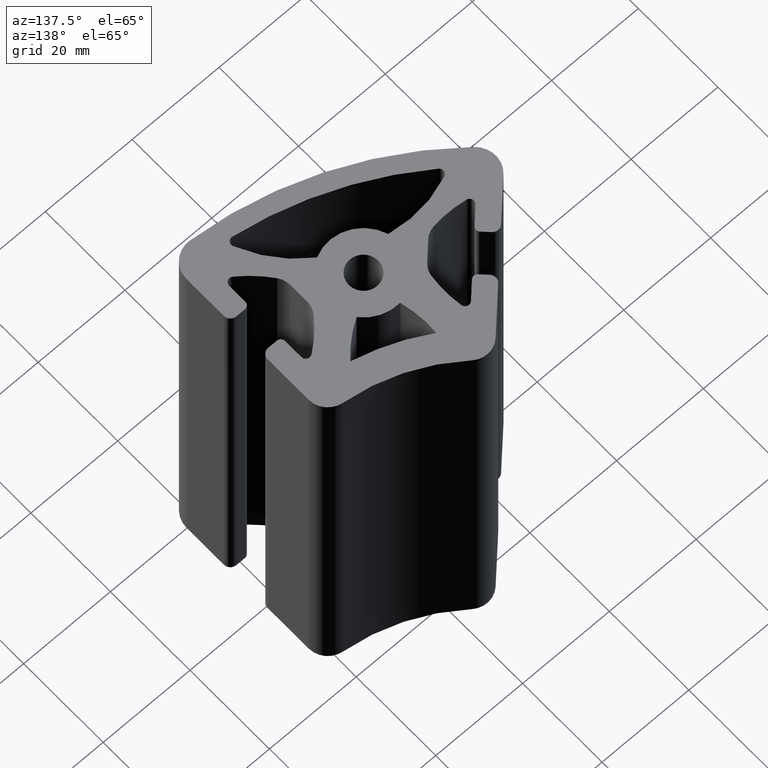
[diagram: clean part render]
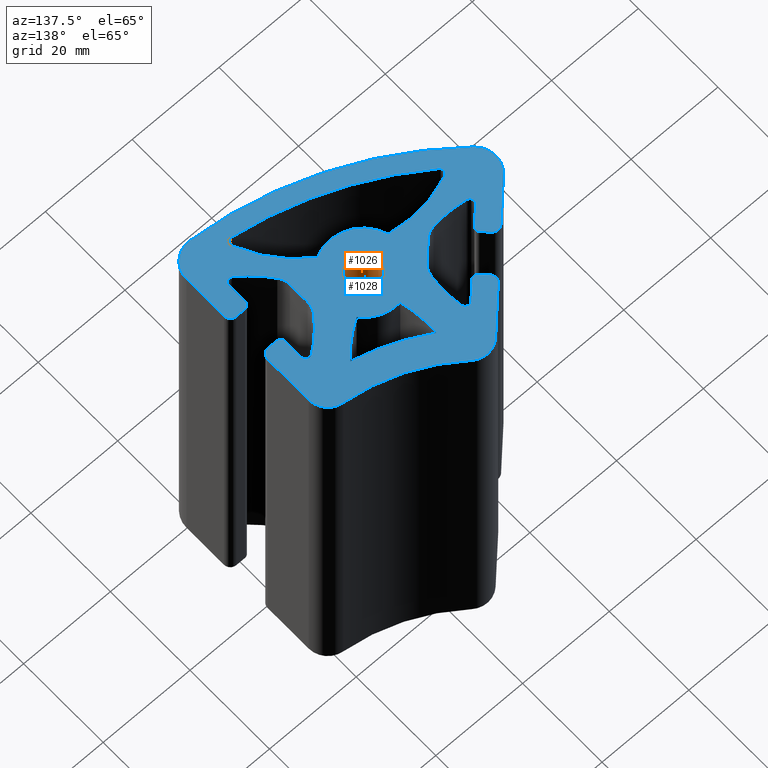
[diagram: same view with the hole feature highlighted: cylindrical wall and planar end face, labeled with their STEP entity ids]
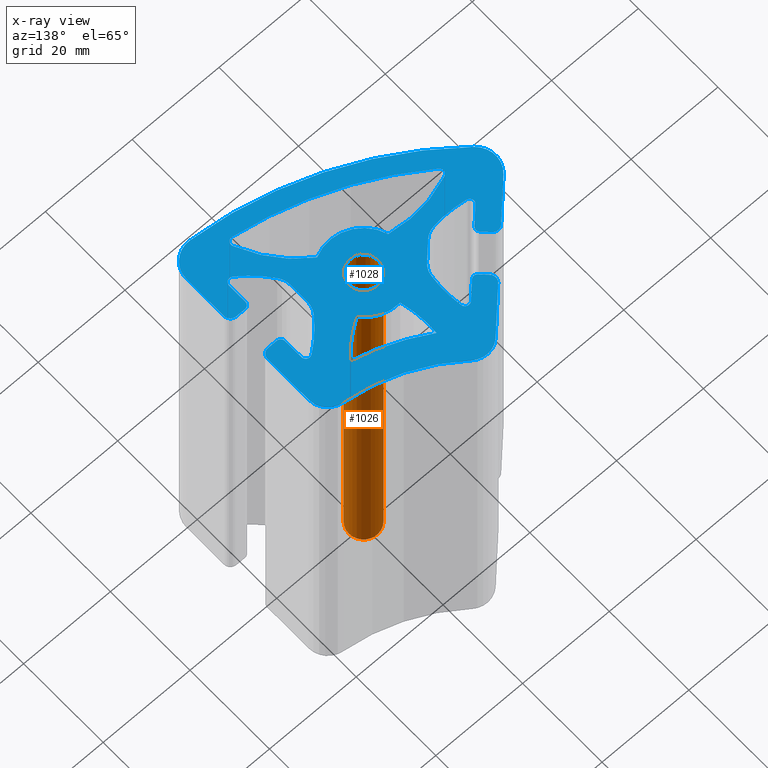
[diagram: x-ray of the same camera — body ghosted, the hole faces saturated]
A machine part, auxiliary view. The highlighted faces form one hole feature of diameter 6.8 mm: the cylindrical wall (entity #1026, orange) and its adjacent planar end face (entity #1028, blue) — they share a circular edge in the B-rep.
The next image is the same camera in x-ray (body ghosted, the hole faces saturated) — the bore reads through the body.
Wall:
#15=FACE_BOUND('',#142,.T.);
#88=FACE_OUTER_BOUND('',#141,.T.);
#141=EDGE_LOOP('',(#835));
#142=EDGE_LOOP('',(#836));
#379=CIRCLE('',#1154,3.3999999999992);
#380=CIRCLE('',#1155,3.3999999999992);
#481=VERTEX_POINT('',#1794);
#482=VERTEX_POINT('',#1796);
#633=EDGE_CURVE('',#481,#481,#379,.T.);
#634=EDGE_CURVE('',#482,#482,#380,.T.);
#835=ORIENTED_EDGE('',*,*,#633,.F.);
#836=ORIENTED_EDGE('',*,*,#634,.T.);
#975=CYLINDRICAL_SURFACE('',#1153,3.3999999999992);
#1026=ADVANCED_FACE('',(#88,#15),#975,.F.);
#1153=AXIS2_PLACEMENT_3D('',#1793,#1482,#1483);
#1154=AXIS2_PLACEMENT_3D('',#1795,#1484,#1485);
#1155=AXIS2_PLACEMENT_3D('',#1797,#1486,#1487);
#1482=DIRECTION('center_axis',(0.,0.,-1.));
#1483=DIRECTION('ref_axis',(1.,0.,0.));
#1484=DIRECTION('center_axis',(0.,0.,-1.));
#1485=DIRECTION('ref_axis',(1.,0.,0.));
#1486=DIRECTION('center_axis',(0.,0.,-1.));
#1487=DIRECTION('ref_axis',(1.,0.,0.));
#1793=CARTESIAN_POINT('Origin',(0.,0.,0.));
#1794=CARTESIAN_POINT('',(-3.3999999999992,0.,100.));
#1795=CARTESIAN_POINT('Origin',(0.,0.,100.));
#1796=CARTESIAN_POINT('',(-3.3999999999992,0.,0.));
#1797=CARTESIAN_POINT('Origin',(0.,0.,0.));
End face:
#19=FACE_BOUND('',#148,.T.);
#20=FACE_BOUND('',#149,.T.);
#21=FACE_BOUND('',#150,.T.);
#37=PLANE('',#1157);
#90=FACE_OUTER_BOUND('',#147,.T.);
#147=EDGE_LOOP('',(#888,#889,#890,#891,#892,#893,#894,#895,#896,#897,#898,
#899,#900,#901,#902,#903,#904,#905,#906,#907,#908,#909,#910,#911,#912,#913,
#914,#915,#916,#917,#918,#919,#920,#921,#922,#923,#924,#925,#926,#927));
#148=EDGE_LOOP('',(#928,#929,#930,#931));
#149=EDGE_LOOP('',(#932,#933,#934,#935,#936,#937));
#150=EDGE_LOOP('',(#938));
#156=LINE('',#1513,#234);
#160=LINE('',#1525,#238);
#164=LINE('',#1537,#242);
#170=LINE('',#1561,#248);
#176=LINE('',#1585,#254);
#180=LINE('',#1597,#258);
#184=LINE('',#1609,#262);
#190=LINE('',#1633,#268);
#194=LINE('',#1645,#272);
#198=LINE('',#1657,#276);
#204=LINE('',#1681,#282);
#210=LINE('',#1705,#288);
#214=LINE('',#1717,#292);
#218=LINE('',#1729,#296);
#234=VECTOR('',#1179,10.3185559378409);
#238=VECTOR('',#1191,1.99999999961383);
#242=VECTOR('',#1203,4.0813799715757);
#248=VECTOR('',#1229,4.38611258266495);
#254=VECTOR('',#1255,4.08137997157545);
#258=VECTOR('',#1267,2.00000000003804);
#262=VECTOR('',#1279,9.39346180235945);
#268=VECTOR('',#1305,9.39346185220002);
#272=VECTOR('',#1317,2.00000075430013);
#276=VECTOR('',#1329,4.08137997149999);
#282=VECTOR('',#1355,4.38611258250001);
#288=VECTOR('',#1381,4.08137997150005);
#292=VECTOR('',#1393,2.00000000000001);
#296=VECTOR('',#1405,10.3185556507001);
#308=CIRCLE('',#1033,40.0000000000008);
#310=CIRCLE('',#1036,4.39999999274337);
#312=CIRCLE('',#1040,1.5000000000009);
#314=CIRCLE('',#1044,1.00000000000065);
#316=CIRCLE('',#1048,1.00000000000039);
#318=CIRCLE('',#1051,24.9999999999984);
#320=CIRCLE('',#1054,3.99999999887074);
#322=CIRCLE('',#1058,3.99999999756813);
#324=CIRCLE('',#1061,24.9999999998268);
#326=CIRCLE('',#1064,0.999999999910538);
#328=CIRCLE('',#1068,1.00000000000049);
#330=CIRCLE('',#1072,1.5000000000001);
#332=CIRCLE('',#1076,4.94355862037018);
#334=CIRCLE('',#1079,79.9999999999343);
#336=CIRCLE('',#1082,4.9435586203638);
#338=CIRCLE('',#1086,1.50000000000251);
#340=CIRCLE('',#1090,0.999999999999775);
#342=CIRCLE('',#1094,0.999999999998558);
#344=CIRCLE('',#1097,24.9999999999962);
#346=CIRCLE('',#1100,3.99999999774014);
#348=CIRCLE('',#1104,3.99999999877938);
#350=CIRCLE('',#1107,24.9999999999128);
#352=CIRCLE('',#1110,0.999999999955665);
#354=CIRCLE('',#1114,1.);
#356=CIRCLE('',#1118,1.5);
#358=CIRCLE('',#1122,4.39999999274737);
#360=CIRCLE('',#1125,45.8199330349291);
#362=CIRCLE('',#1128,24.9999999999837);
#364=CIRCLE('',#1131,8.40000000000022);
#366=CIRCLE('',#1134,25.0000000000011);
#368=CIRCLE('',#1137,1.00000000000546);
#370=CIRCLE('',#1140,76.2854262839588);
#372=CIRCLE('',#1143,1.0000000000059);
#374=CIRCLE('',#1146,25.0000000000032);
#376=CIRCLE('',#1149,8.40000000000033);
#378=CIRCLE('',#1152,24.9999999999996);
#379=CIRCLE('',#1154,3.3999999999992);
#383=VERTEX_POINT('',#1497);
#384=VERTEX_POINT('',#1499);
#386=VERTEX_POINT('',#1505);
#388=VERTEX_POINT('',#1511);
#390=VERTEX_POINT('',#1517);
#392=VERTEX_POINT('',#1523);
#394=VERTEX_POINT('',#1529);
#396=VERTEX_POINT('',#1535);
#398=VERTEX_POINT('',#1541);
#400=VERTEX_POINT('',#1547);
#402=VERTEX_POINT('',#1553);
#404=VERTEX_POINT('',#1559);
#406=VERTEX_POINT('',#1565);
#408=VERTEX_POINT('',#1571);
#410=VERTEX_POINT('',#1577);
#412=VERTEX_POINT('',#1583);
#414=VERTEX_POINT('',#1589);
#416=VERTEX_POINT('',#1595);
#418=VERTEX_POINT('',#1601);
#420=VERTEX_POINT('',#1607);
#422=VERTEX_POINT('',#1613);
#424=VERTEX_POINT('',#1619);
#426=VERTEX_POINT('',#1625);
#428=VERTEX_POINT('',#1631);
#430=VERTEX_POINT('',#1637);
#432=VERTEX_POINT('',#1643);
#434=VERTEX_POINT('',#1649);
#436=VERTEX_POINT('',#1655);
#438=VERTEX_POINT('',#1661);
#440=VERTEX_POINT('',#1667);
#442=VERTEX_POINT('',#1673);
#444=VERTEX_POINT('',#1679);
#446=VERTEX_POINT('',#1685);
#448=VERTEX_POINT('',#1691);
#450=VERTEX_POINT('',#1697);
#452=VERTEX_POINT('',#1703);
#454=VERTEX_POINT('',#1709);
#456=VERTEX_POINT('',#1715);
#458=VERTEX_POINT('',#1721);
#460=VERTEX_POINT('',#1727);
#463=VERTEX_POINT('',#1737);
#464=VERTEX_POINT('',#1739);
#466=VERTEX_POINT('',#1745);
#468=VERTEX_POINT('',#1751);
#471=VERTEX_POINT('',#1761);
#472=VERTEX_POINT('',#1763);
#474=VERTEX_POINT('',#1769);
#476=VERTEX_POINT('',#1775);
#478=VERTEX_POINT('',#1781);
#480=VERTEX_POINT('',#1787);
#481=VERTEX_POINT('',#1794);
#485=EDGE_CURVE('',#384,#383,#308,.T.);
#489=EDGE_CURVE('',#383,#386,#310,.T.);
#492=EDGE_CURVE('',#386,#388,#156,.T.);
#495=EDGE_CURVE('',#388,#390,#312,.T.);
#498=EDGE_CURVE('',#390,#392,#160,.T.);
#501=EDGE_CURVE('',#392,#394,#314,.T.);
#504=EDGE_CURVE('',#394,#396,#164,.T.);
#507=EDGE_CURVE('',#396,#398,#316,.T.);
#510=EDGE_CURVE('',#398,#400,#318,.T.);
#513=EDGE_CURVE('',#400,#402,#320,.T.);
#516=EDGE_CURVE('',#402,#404,#170,.T.);
#519=EDGE_CURVE('',#404,#406,#322,.T.);
#522=EDGE_CURVE('',#406,#408,#324,.T.);
#525=EDGE_CURVE('',#408,#410,#326,.T.);
#528=EDGE_CURVE('',#410,#412,#176,.T.);
#531=EDGE_CURVE('',#412,#414,#328,.T.);
#534=EDGE_CURVE('',#414,#416,#180,.T.);
#537=EDGE_CURVE('',#416,#418,#330,.T.);
#540=EDGE_CURVE('',#418,#420,#184,.T.);
#543=EDGE_CURVE('',#420,#422,#332,.T.);
#546=EDGE_CURVE('',#422,#424,#334,.T.);
#549=EDGE_CURVE('',#424,#426,#336,.T.);
#552=EDGE_CURVE('',#426,#428,#190,.T.);
#555=EDGE_CURVE('',#428,#430,#338,.T.);
#558=EDGE_CURVE('',#430,#432,#194,.T.);
#561=EDGE_CURVE('',#432,#434,#340,.T.);
#564=EDGE_CURVE('',#434,#436,#198,.T.);
#567=EDGE_CURVE('',#436,#438,#342,.T.);
#570=EDGE_CURVE('',#438,#440,#344,.T.);
#573=EDGE_CURVE('',#440,#442,#346,.T.);
#576=EDGE_CURVE('',#442,#444,#204,.T.);
#579=EDGE_CURVE('',#444,#446,#348,.T.);
#582=EDGE_CURVE('',#446,#448,#350,.T.);
#585=EDGE_CURVE('',#448,#450,#352,.T.);
#588=EDGE_CURVE('',#450,#452,#210,.T.);
#591=EDGE_CURVE('',#452,#454,#354,.T.);
#594=EDGE_CURVE('',#454,#456,#214,.T.);
#597=EDGE_CURVE('',#456,#458,#356,.T.);
#600=EDGE_CURVE('',#458,#460,#218,.T.);
#602=EDGE_CURVE('',#460,#384,#358,.T.);
#605=EDGE_CURVE('',#464,#463,#360,.T.);
#609=EDGE_CURVE('',#463,#466,#362,.T.);
#612=EDGE_CURVE('',#466,#468,#364,.T.);
#614=EDGE_CURVE('',#468,#464,#366,.T.);
#617=EDGE_CURVE('',#472,#471,#368,.T.);
#621=EDGE_CURVE('',#471,#474,#370,.T.);
#624=EDGE_CURVE('',#474,#476,#372,.T.);
#627=EDGE_CURVE('',#476,#478,#374,.T.);
#630=EDGE_CURVE('',#478,#480,#376,.T.);
#632=EDGE_CURVE('',#480,#472,#378,.T.);
#633=EDGE_CURVE('',#481,#481,#379,.T.);
#888=ORIENTED_EDGE('',*,*,#485,.T.);
#889=ORIENTED_EDGE('',*,*,#489,.T.);
#890=ORIENTED_EDGE('',*,*,#492,.T.);
#891=ORIENTED_EDGE('',*,*,#495,.T.);
#892=ORIENTED_EDGE('',*,*,#498,.T.);
#893=ORIENTED_EDGE('',*,*,#501,.T.);
#894=ORIENTED_EDGE('',*,*,#504,.T.);
#895=ORIENTED_EDGE('',*,*,#507,.T.);
#896=ORIENTED_EDGE('',*,*,#510,.T.);
#897=ORIENTED_EDGE('',*,*,#513,.T.);
#898=ORIENTED_EDGE('',*,*,#516,.T.);
#899=ORIENTED_EDGE('',*,*,#519,.T.);
#900=ORIENTED_EDGE('',*,*,#522,.T.);
#901=ORIENTED_EDGE('',*,*,#525,.T.);
#902=ORIENTED_EDGE('',*,*,#528,.T.);
#903=ORIENTED_EDGE('',*,*,#531,.T.);
#904=ORIENTED_EDGE('',*,*,#534,.T.);
#905=ORIENTED_EDGE('',*,*,#537,.T.);
#906=ORIENTED_EDGE('',*,*,#540,.T.);
#907=ORIENTED_EDGE('',*,*,#543,.T.);
#908=ORIENTED_EDGE('',*,*,#546,.T.);
#909=ORIENTED_EDGE('',*,*,#549,.T.);
#910=ORIENTED_EDGE('',*,*,#552,.T.);
#911=ORIENTED_EDGE('',*,*,#555,.T.);
#912=ORIENTED_EDGE('',*,*,#558,.T.);
#913=ORIENTED_EDGE('',*,*,#561,.T.);
#914=ORIENTED_EDGE('',*,*,#564,.T.);
#915=ORIENTED_EDGE('',*,*,#567,.T.);
#916=ORIENTED_EDGE('',*,*,#570,.T.);
#917=ORIENTED_EDGE('',*,*,#573,.T.);
#918=ORIENTED_EDGE('',*,*,#576,.T.);
#919=ORIENTED_EDGE('',*,*,#579,.T.);
#920=ORIENTED_EDGE('',*,*,#582,.T.);
#921=ORIENTED_EDGE('',*,*,#585,.T.);
#922=ORIENTED_EDGE('',*,*,#588,.T.);
#923=ORIENTED_EDGE('',*,*,#591,.T.);
#924=ORIENTED_EDGE('',*,*,#594,.T.);
#925=ORIENTED_EDGE('',*,*,#597,.T.);
#926=ORIENTED_EDGE('',*,*,#600,.T.);
#927=ORIENTED_EDGE('',*,*,#602,.T.);
#928=ORIENTED_EDGE('',*,*,#605,.T.);
#929=ORIENTED_EDGE('',*,*,#609,.T.);
#930=ORIENTED_EDGE('',*,*,#612,.T.);
#931=ORIENTED_EDGE('',*,*,#614,.T.);
#932=ORIENTED_EDGE('',*,*,#617,.T.);
#933=ORIENTED_EDGE('',*,*,#621,.T.);
#934=ORIENTED_EDGE('',*,*,#624,.T.);
#935=ORIENTED_EDGE('',*,*,#627,.T.);
#936=ORIENTED_EDGE('',*,*,#630,.T.);
#937=ORIENTED_EDGE('',*,*,#632,.T.);
#938=ORIENTED_EDGE('',*,*,#633,.T.);
#1028=ADVANCED_FACE('',(#90,#19,#20,#21),#37,.T.);
#1033=AXIS2_PLACEMENT_3D('',#1500,#1165,#1166);
#1036=AXIS2_PLACEMENT_3D('',#1507,#1173,#1174);
#1040=AXIS2_PLACEMENT_3D('',#1519,#1185,#1186);
#1044=AXIS2_PLACEMENT_3D('',#1531,#1197,#1198);
#1048=AXIS2_PLACEMENT_3D('',#1543,#1209,#1210);
#1051=AXIS2_PLACEMENT_3D('',#1549,#1216,#1217);
#1054=AXIS2_PLACEMENT_3D('',#1555,#1223,#1224);
#1058=AXIS2_PLACEMENT_3D('',#1567,#1235,#1236);
#1061=AXIS2_PLACEMENT_3D('',#1573,#1242,#1243);
#1064=AXIS2_PLACEMENT_3D('',#1579,#1249,#1250);
#1068=AXIS2_PLACEMENT_3D('',#1591,#1261,#1262);
#1072=AXIS2_PLACEMENT_3D('',#1603,#1273,#1274);
#1076=AXIS2_PLACEMENT_3D('',#1615,#1285,#1286);
#1079=AXIS2_PLACEMENT_3D('',#1621,#1292,#1293);
#1082=AXIS2_PLACEMENT_3D('',#1627,#1299,#1300);
#1086=AXIS2_PLACEMENT_3D('',#1639,#1311,#1312);
#1090=AXIS2_PLACEMENT_3D('',#1651,#1323,#1324);
#1094=AXIS2_PLACEMENT_3D('',#1663,#1335,#1336);
#1097=AXIS2_PLACEMENT_3D('',#1669,#1342,#1343);
#1100=AXIS2_PLACEMENT_3D('',#1675,#1349,#1350);
#1104=AXIS2_PLACEMENT_3D('',#1687,#1361,#1362);
#1107=AXIS2_PLACEMENT_3D('',#1693,#1368,#1369);
#1110=AXIS2_PLACEMENT_3D('',#1699,#1375,#1376);
#1114=AXIS2_PLACEMENT_3D('',#1711,#1387,#1388);
#1118=AXIS2_PLACEMENT_3D('',#1723,#1399,#1400);
#1122=AXIS2_PLACEMENT_3D('',#1732,#1410,#1411);
#1125=AXIS2_PLACEMENT_3D('',#1740,#1417,#1418);
#1128=AXIS2_PLACEMENT_3D('',#1747,#1425,#1426);
#1131=AXIS2_PLACEMENT_3D('',#1753,#1432,#1433);
#1134=AXIS2_PLACEMENT_3D('',#1756,#1438,#1439);
#1137=AXIS2_PLACEMENT_3D('',#1764,#1445,#1446);
#1140=AXIS2_PLACEMENT_3D('',#1771,#1453,#1454);
#1143=AXIS2_PLACEMENT_3D('',#1777,#1460,#1461);
#1146=AXIS2_PLACEMENT_3D('',#1783,#1467,#1468);
#1149=AXIS2_PLACEMENT_3D('',#1789,#1474,#1475);
#1152=AXIS2_PLACEMENT_3D('',#1792,#1480,#1481);
#1154=AXIS2_PLACEMENT_3D('',#1795,#1484,#1485);
#1157=AXIS2_PLACEMENT_3D('',#1799,#1490,#1491);
#1165=DIRECTION('center_axis',(0.,0.,-1.));
#1166=DIRECTION('ref_axis',(-0.63355250861249,-0.773699695509066,0.));
#1173=DIRECTION('center_axis',(0.,0.,1.));
#1174=DIRECTION('ref_axis',(0.6335525086179,0.773699695504636,0.));
#1179=DIRECTION('',(-0.707106832870135,-0.707106729502956,0.));
#1185=DIRECTION('center_axis',(0.,0.,1.));
#1186=DIRECTION('ref_axis',(-0.707106729496021,0.707106832877071,0.));
#1191=DIRECTION('',(0.707106729486546,-0.707106832886545,0.));
#1197=DIRECTION('center_axis',(0.,0.,1.));
#1198=DIRECTION('ref_axis',(-0.707106832874608,-0.707106729498484,0.));
#1203=DIRECTION('',(0.707106832884756,0.707106729488335,0.));
#1209=DIRECTION('center_axis',(0.,0.,-1.));
#1210=DIRECTION('ref_axis',(0.987633140320515,0.156782588767495,0.));
#1216=DIRECTION('center_axis',(0.,0.,-1.));
#1217=DIRECTION('ref_axis',(0.989378958685399,-0.145359128060795,0.));
#1223=DIRECTION('center_axis',(0.,0.,-1.));
#1224=DIRECTION('ref_axis',(0.70710672948126,-0.707106832891831,0.));
#1229=DIRECTION('',(-0.707106832883816,-0.707106729489275,0.));
#1235=DIRECTION('center_axis',(0.,0.,-1.));
#1236=DIRECTION('ref_axis',(0.145358983155329,-0.989378979974837,0.));
#1242=DIRECTION('center_axis',(0.,0.,-1.));
#1243=DIRECTION('ref_axis',(-0.156782733162121,-0.987633117398467,0.));
#1249=DIRECTION('center_axis',(0.,0.,-1.));
#1250=DIRECTION('ref_axis',(-0.70710672949604,0.707106832877052,0.));
#1255=DIRECTION('',(0.70710683286023,0.707106729512861,0.));
#1261=DIRECTION('center_axis',(0.,0.,1.));
#1262=DIRECTION('ref_axis',(0.707106729496096,-0.707106832876995,0.));
#1267=DIRECTION('',(-0.707106729486518,0.707106832886574,0.));
#1273=DIRECTION('center_axis',(0.,0.,1.));
#1274=DIRECTION('ref_axis',(0.707106832719046,0.707106729654045,0.));
#1279=DIRECTION('',(-0.707106832876755,-0.707106729496336,0.));
#1285=DIRECTION('center_axis',(0.,0.,1.));
#1286=DIRECTION('ref_axis',(-0.707106729630642,0.707106832742449,0.));
#1292=DIRECTION('center_axis',(0.,0.,1.));
#1293=DIRECTION('ref_axis',(-0.65899813661131,-0.752144571171541,0.));
#1299=DIRECTION('center_axis',(0.,0.,1.));
#1300=DIRECTION('ref_axis',(-0.065864611351598,-0.997828568929304,0.));
#1305=DIRECTION('',(7.31040259690093E-8,0.999999999999997,0.));
#1311=DIRECTION('center_axis',(0.,0.,1.));
#1312=DIRECTION('ref_axis',(0.999999999999997,-7.3101357E-8,0.));
#1317=DIRECTION('',(-0.999999999999997,7.31000406511256E-8,0.));
#1323=DIRECTION('center_axis',(0.,0.,1.));
#1324=DIRECTION('ref_axis',(7.3097908E-8,0.999999999999997,0.));
#1329=DIRECTION('',(-7.30879534522933E-8,-0.999999999999997,0.));
#1335=DIRECTION('center_axis',(0.,0.,-1.));
#1336=DIRECTION('ref_axis',(-0.587500059154928,-0.809224122535257,0.));
#1342=DIRECTION('center_axis',(0.,0.,-1.));
#1343=DIRECTION('ref_axis',(-0.802380995919926,-0.596812145810177,0.));
#1349=DIRECTION('center_axis',(0.,0.,-1.));
#1350=DIRECTION('ref_axis',(-0.999999999999997,7.32305240000001E-8,0.));
#1355=DIRECTION('',(7.31399728791574E-8,0.999999999999997,0.));
#1361=DIRECTION('center_axis',(0.,0.,-1.));
#1362=DIRECTION('ref_axis',(-0.802380908675186,0.596812263105897,0.));
#1368=DIRECTION('center_axis',(0.,0.,-1.));
#1369=DIRECTION('ref_axis',(-0.587499940844968,0.809224208428764,0.));
#1375=DIRECTION('center_axis',(0.,0.,-1.));
#1376=DIRECTION('ref_axis',(0.999999999999997,-7.31013190000001E-8,0.));
#1381=DIRECTION('',(-7.31125218884188E-8,-0.999999999999997,0.));
#1387=DIRECTION('center_axis',(0.,0.,1.));
#1388=DIRECTION('ref_axis',(-0.999999999999997,7.3101319E-8,0.));
#1393=DIRECTION('',(0.999999999999997,-7.310001100963E-8,0.));
#1399=DIRECTION('center_axis',(0.,0.,1.));
#1400=DIRECTION('ref_axis',(-7.3104881E-8,-0.999999999999997,0.));
#1405=DIRECTION('',(1.46202632572398E-7,0.999999999999989,0.));
#1410=DIRECTION('center_axis',(0.,0.,1.));
#1411=DIRECTION('ref_axis',(0.999999999999989,-1.46202746E-7,0.));
#1417=DIRECTION('center_axis',(0.,0.,1.));
#1418=DIRECTION('ref_axis',(-0.534313376731466,-0.845286469456254,0.));
#1425=DIRECTION('center_axis',(0.,0.,-1.));
#1426=DIRECTION('ref_axis',(1.,0.,0.));
#1432=DIRECTION('center_axis',(0.,0.,1.));
#1433=DIRECTION('ref_axis',(0.771940579077785,0.635694692736265,0.));
#1438=DIRECTION('center_axis',(0.,0.,-1.));
#1439=DIRECTION('ref_axis',(-0.996551865702632,0.082972157767554,0.));
#1445=DIRECTION('center_axis',(0.,0.,-1.));
#1446=DIRECTION('ref_axis',(-7.3066531E-8,-0.999999999999997,0.));
#1453=DIRECTION('center_axis',(0.,0.,-1.));
#1454=DIRECTION('ref_axis',(-0.595569740235652,-0.803303606686562,0.));
#1460=DIRECTION('center_axis',(0.,0.,-1.));
#1461=DIRECTION('ref_axis',(1.,0.,0.));
#1467=DIRECTION('center_axis',(0.,0.,-1.));
#1468=DIRECTION('ref_axis',(0.18362855463492,0.982995703918735,0.));
#1474=DIRECTION('center_axis',(0.,0.,1.));
#1475=DIRECTION('ref_axis',(-0.95432230934647,-0.298779065336948,0.));
#1480=DIRECTION('center_axis',(0.,0.,-1.));
#1481=DIRECTION('ref_axis',(0.92355518849237,0.383465531448164,0.));
#1484=DIRECTION('center_axis',(0.,0.,-1.));
#1485=DIRECTION('ref_axis',(1.,0.,0.));
#1490=DIRECTION('center_axis',(0.,0.,1.));
#1491=DIRECTION('ref_axis',(1.,0.,0.));
#1497=CARTESIAN_POINT('',(-2.38109035043476,24.4847824518103,100.));
#1499=CARTESIAN_POINT('',(18.9970438058197,15.6296677290487,100.));
#1500=CARTESIAN_POINT('Origin',(22.9610099940653,55.4327702721734,100.));
#1505=CARTESIAN_POINT('',(-8.27999098840746,24.1917738567321,100.));
#1507=CARTESIAN_POINT('Origin',(-5.16872138375606,21.0805037972043,100.));
#1511=CARTESIAN_POINT('',(-15.5763123974075,16.8954535143321,100.));
#1513=CARTESIAN_POINT('',(-8.27999098840746,24.1917738567321,100.));
#1517=CARTESIAN_POINT('',(-15.5763125524772,14.7741331707693,100.));
#1519=CARTESIAN_POINT('Origin',(-14.5156523031628,15.8347932650158,100.));
#1523=CARTESIAN_POINT('',(-14.1620990937772,13.3599195052693,100.));
#1525=CARTESIAN_POINT('',(-15.5763125524772,14.7741331707693,100.));
#1529=CARTESIAN_POINT('',(-12.7478855314057,13.3599194018907,100.));
#1531=CARTESIAN_POINT('Origin',(-13.4549922609022,14.0670262347683,100.));
#1535=CARTESIAN_POINT('',(-9.86191386590554,16.2458906453908,100.));
#1537=CARTESIAN_POINT('',(-12.7478855314057,13.3599194018907,100.));
#1541=CARTESIAN_POINT('',(-8.1671739960882,15.6955664012811,100.));
#1543=CARTESIAN_POINT('Origin',(-9.15480713640909,15.5387838125135,100.));
#1547=CARTESIAN_POINT('',(-8.12352853696621,8.1420234805754,100.));
#1549=CARTESIAN_POINT('Origin',(-32.8580025040997,11.7760016820951,100.));
#1553=CARTESIAN_POINT('',(-9.2526174535401,5.89503266136762,100.));
#1555=CARTESIAN_POINT('Origin',(-12.0810443706666,8.72345999213644,100.));
#1559=CARTESIAN_POINT('',(-12.3540676305402,2.79358293786765,100.));
#1561=CARTESIAN_POINT('',(-9.2526174535401,5.89503266136762,100.));
#1565=CARTESIAN_POINT('',(-14.6010586149023,1.66449434979757,100.));
#1567=CARTESIAN_POINT('Origin',(-15.1824945471701,5.62201026729088,100.));
#1571=CARTESIAN_POINT('',(-22.1546015291749,1.70814091326793,100.));
#1573=CARTESIAN_POINT('Origin',(-18.235033200149,26.3989688480585,100.));
#1577=CARTESIAN_POINT('',(-22.7049255254578,3.4028808633916,100.));
#1579=CARTESIAN_POINT('Origin',(-21.9978187960251,2.69577403057781,100.));
#1583=CARTESIAN_POINT('',(-19.8189538600579,6.28885210699161,100.));
#1585=CARTESIAN_POINT('',(-22.7049255254578,3.4028808633916,100.));
#1589=CARTESIAN_POINT('',(-19.8189537566771,7.70306566936529,100.));
#1591=CARTESIAN_POINT('Origin',(-20.5260605895544,6.99595893986896,100.));
#1595=CARTESIAN_POINT('',(-21.233167215677,9.11727933516533,100.));
#1597=CARTESIAN_POINT('',(-19.8189537566771,7.70306566936529,100.));
#1601=CARTESIAN_POINT('',(-23.3544875589998,9.11727948999999,100.));
#1603=CARTESIAN_POINT('Origin',(-22.2938274647556,8.0566192406842,100.));
#1607=CARTESIAN_POINT('',(-29.9966685838185,2.47509943628836,100.));
#1609=CARTESIAN_POINT('',(-23.3544875589998,9.11727948999999,100.));
#1613=CARTESIAN_POINT('',(-29.7588409341033,-4.73879542079442,100.));
#1615=CARTESIAN_POINT('Origin',(-26.5010450150312,-1.02052464223823,100.));
#1619=CARTESIAN_POINT('',(17.6918410865978,-24.3935152413968,100.));
#1621=CARTESIAN_POINT('Origin',(22.9610099947581,55.4327702728795,100.));
#1625=CARTESIAN_POINT('',(22.9610052741857,-19.4606915792004,100.));
#1627=CARTESIAN_POINT('Origin',(18.0174466538219,-19.4606912178211,100.));
#1631=CARTESIAN_POINT('',(22.9610059608856,-10.0672297270004,100.));
#1633=CARTESIAN_POINT('',(22.9610052741857,-19.4606915792004,100.));
#1637=CARTESIAN_POINT('',(21.46100607054,-8.56722961734579,100.));
#1639=CARTESIAN_POINT('Origin',(21.4610059608831,-10.0672296173483,100.));
#1643=CARTESIAN_POINT('',(19.4610053162398,-8.56722947114566,100.));
#1645=CARTESIAN_POINT('',(21.46100607054,-8.56722961734579,100.));
#1649=CARTESIAN_POINT('',(18.4610052431422,-9.56722939804467,100.));
#1651=CARTESIAN_POINT('Origin',(19.4610052431419,-9.56722947114542,100.));
#1655=CARTESIAN_POINT('',(18.4610049448427,-13.6486093695447,100.));
#1657=CARTESIAN_POINT('',(18.4610052431422,-9.56722939804467,100.));
#1661=CARTESIAN_POINT('',(16.87350488569,-14.4578334189756,100.));
#1663=CARTESIAN_POINT('Origin',(17.461004944844,-13.6486092964415,100.));
#1667=CARTESIAN_POINT('',(11.5014814636998,-9.14753399876861,100.));
#1669=CARTESIAN_POINT('Origin',(31.5610063616948,5.77276964648354,100.));
#1673=CARTESIAN_POINT('',(10.7110054475611,-6.76028512359824,100.));
#1675=CARTESIAN_POINT('Origin',(14.7110054453012,-6.76028541652034,100.));
#1679=CARTESIAN_POINT('',(10.7110057683613,-2.37417254109823,100.));
#1681=CARTESIAN_POINT('',(10.7110054475611,-6.76028512359824,100.));
#1685=CARTESIAN_POINT('',(11.5014821334194,0.013076218449669,100.));
#1687=CARTESIAN_POINT('Origin',(14.7110057671407,-2.37417283324544,100.));
#1691=CARTESIAN_POINT('',(16.873506331109,5.32337485412836,100.));
#1693=CARTESIAN_POINT('Origin',(31.5610048521819,-14.9072303565201,100.));
#1697=CARTESIAN_POINT('',(18.461006271878,4.51415057263012,100.));
#1699=CARTESIAN_POINT('Origin',(17.4610062719223,4.51415064573143,100.));
#1703=CARTESIAN_POINT('',(18.461005973478,0.432770601130073,100.));
#1705=CARTESIAN_POINT('',(18.461006271878,4.51415057263012,100.));
#1709=CARTESIAN_POINT('',(19.4610059003749,-0.567229471971245,100.));
#1711=CARTESIAN_POINT('Origin',(19.461005973478,0.432770528028755,100.));
#1715=CARTESIAN_POINT('',(21.4610059003749,-0.567229618171268,100.));
#1717=CARTESIAN_POINT('',(19.4610059003749,-0.567229471971245,100.));
#1721=CARTESIAN_POINT('',(22.9610060100322,0.932770162524662,100.));
#1723=CARTESIAN_POINT('Origin',(21.4610060100322,0.932770381828732,100.));
#1727=CARTESIAN_POINT('',(22.9610075186322,11.2513258132246,100.));
#1729=CARTESIAN_POINT('',(22.9610060100322,0.932770162524662,100.));
#1732=CARTESIAN_POINT('Origin',(18.5610075258849,11.2513264565167,100.));
#1737=CARTESIAN_POINT('',(12.8856041958202,10.7343087626276,100.));
#1739=CARTESIAN_POINT('',(-1.52119314738548,16.7018008464086,100.));
#1740=CARTESIAN_POINT('Origin',(22.9610099941171,55.4327702722258,100.));
#1745=CARTESIAN_POINT('',(6.48430086421627,5.33983541902296,100.));
#1747=CARTESIAN_POINT('Origin',(-6.19786237919993,26.8842717186,100.));
#1751=CARTESIAN_POINT('',(-0.809258054844804,8.36092706590432,100.));
#1753=CARTESIAN_POINT('Origin',(-3.728928E-11,3.819878E-11,100.));
#1756=CARTESIAN_POINT('Origin',(23.3926034951815,14.6274969022196,100.));
#1761=CARTESIAN_POINT('',(12.0423844465822,-20.0672289296025,100.));
#1763=CARTESIAN_POINT('',(12.8513769502338,-18.4794098696246,100.));
#1764=CARTESIAN_POINT('Origin',(12.0423845196487,-19.0672289295972,100.));
#1769=CARTESIAN_POINT('',(-22.4722815215337,-5.84758779929473,100.));
#1771=CARTESIAN_POINT('Origin',(22.9610099941697,55.4327702722312,100.));
#1775=CARTESIAN_POINT('',(-22.1549950937622,-3.97974125349572,100.));
#1777=CARTESIAN_POINT('Origin',(-21.9978193562999,-4.96731190290006,100.));
#1781=CARTESIAN_POINT('',(-8.01630739851202,-2.50974414876759,100.));
#1783=CARTESIAN_POINT('Origin',(-12.6070212643856,-27.0846367467391,100.));
#1787=CARTESIAN_POINT('',(3.8937271280638,-7.44304299673445,100.));
#1789=CARTESIAN_POINT('Origin',(-1.364242E-12,6.286882E-11,100.));
#1792=CARTESIAN_POINT('Origin',(-10.2375027620751,-28.0660481558285,100.));
#1794=CARTESIAN_POINT('',(-3.3999999999992,0.,100.));
#1795=CARTESIAN_POINT('Origin',(0.,0.,100.));
#1799=CARTESIAN_POINT('Origin',(-36.8852847558355,-29.3928452061561,100.));